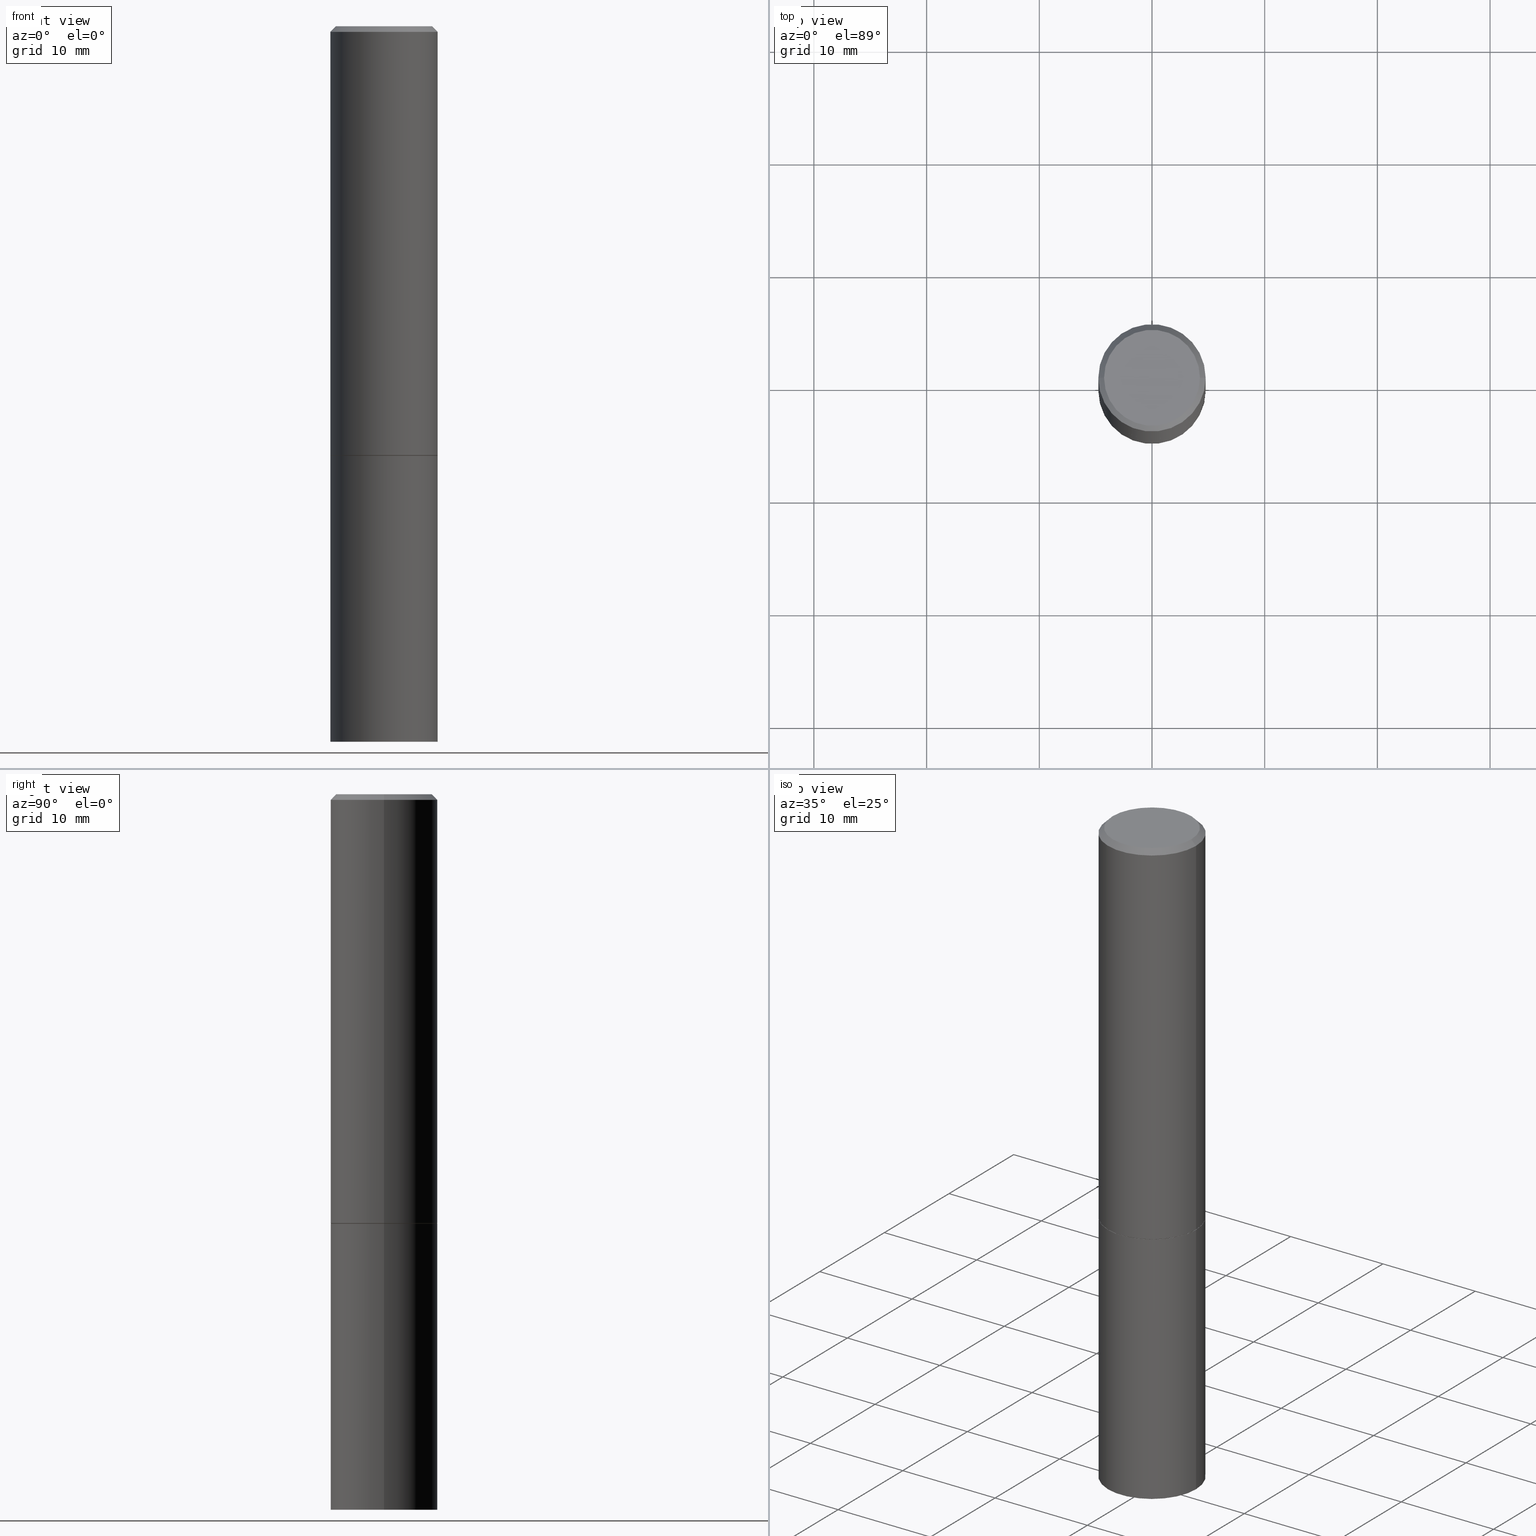
[diagram: canonical four-view strip — front | top / right | iso, engineering-drawing reading convention]
A machine part, canonical four-view strip (front | top / right | iso — engineering-drawing reading convention). The complete STEP part file that produces these views, byte-faithful:
ISO-10303-21;
HEADER;
FILE_DESCRIPTION (( 'STEP AP203' ),
    '1' );
FILE_NAME ('34664.STEP',
    '2024-02-27T16:38:16',
    ( '' ),
    ( '' ),
    'SwSTEP 2.0',
    'SolidWorks 2023',
    '' );
FILE_SCHEMA (( 'CONFIG_CONTROL_DESIGN' ));
ENDSEC;

DATA;
#1 = VERTEX_POINT ( 'NONE', #120 ) ;
#2 = VERTEX_POINT ( 'NONE', #236 ) ;
#3 = LINE ( 'NONE', #4, #242 ) ;
#4 = CARTESIAN_POINT ( 'NONE',  ( -0.1864999999999999714, -3.912059806072132914E-15, -1.500000000000000444 ) ) ;
#5 = AXIS2_PLACEMENT_3D ( 'NONE', #186, #328, #105 ) ;
#6 = PRODUCT_DEFINITION_FORMATION_WITH_SPECIFIED_SOURCE ( 'ANY', '', #138, .NOT_KNOWN. ) ;
#7 = PERSON ( 'UNSPECIFIED', 'UNSPECIFIED', 'UNSPECIFIED', ('UNSPECIFIED'), ('UNSPECIFIED'), ('UNSPECIFIED') ) ;
#8 = DIRECTION ( 'NONE',  ( 1.000000000000000000, -6.982962677686265922E-15, 4.876176775795935793E-29 ) ) ;
#9 = DIRECTION ( 'NONE',  ( 1.000000000000000000, -6.982962677686266711E-15, 4.876176775795936914E-29 ) ) ;
#10 = DIRECTION ( 'NONE',  ( 2.438088387897960049E-29, -3.491481338843145188E-15, -1.000000000000000000 ) ) ;
#11 = PRODUCT_DEFINITION_SHAPE ( 'NONE', 'NONE',  #103 ) ;
#12 = FACE_OUTER_BOUND ( 'NONE', #36, .T. ) ;
#13 = DIRECTION ( 'NONE',  ( 1.000000000000000000, -6.982962677686266711E-15, 0.000000000000000000 ) ) ;
#14 = ADVANCED_FACE ( 'NONE', ( #177 ), #282, .F. ) ;
#15 = ORIENTED_EDGE ( 'NONE', *, *, #347, .F. ) ;
#16 = CARTESIAN_POINT ( 'NONE',  ( 1.309305502066236145E-15, 0.1874999999999912847, -2.500000000000000444 ) ) ;
#17 = PERSON_AND_ORGANIZATION_ROLE ( 'classification_officer' ) ;
#18 = CONICAL_SURFACE ( 'NONE', #319, 0.1864999999999999714, 0.7853981633972946241 ) ;
#19 = ORGANIZATION ( 'UNSPECIFIED', 'UNSPECIFIED', '' ) ;
#20 = EDGE_CURVE ( 'NONE', #252, #1, #185, .T. ) ;
#21 =( CONVERSION_BASED_UNIT ( 'INCH', #196 ) LENGTH_UNIT ( ) NAMED_UNIT ( #344 ) );
#22 = PERSON_AND_ORGANIZATION ( #7, #19 ) ;
#23 = APPLICATION_PROTOCOL_DEFINITION ( 'international standard', 'config_control_design', 1994, #181 ) ;
#24 = AXIS2_PLACEMENT_3D ( 'NONE', #288, #348, #128 ) ;
#25 = EDGE_LOOP ( 'NONE', ( #109, #163, #15, #189 ) ) ;
#26 = FACE_OUTER_BOUND ( 'NONE', #209, .T. ) ;
#27 = CARTESIAN_POINT ( 'NONE',  ( 0.1875000000000000278, -6.546527510330893974E-15, -1.500000000000000222 ) ) ;
#28 = ADVANCED_FACE ( 'NONE', ( #321 ), #187, .F. ) ;
#29 = LINE ( 'NONE', #143, #30 ) ;
#30 = VECTOR ( 'NONE', #310, 39.37007874015748143 ) ;
#31 = APPROVAL ( #50, 'UNSPECIFIED' ) ;
#32 = DIRECTION ( 'NONE',  ( -2.445468806185136597E-29, 3.491481338843145583E-15, 1.000000000000000000 ) ) ;
#33 = CARTESIAN_POINT ( 'NONE',  ( 4.890937612370283668E-31, -6.982962677686305168E-17, -0.02000000000000004205 ) ) ;
#34 = ORIENTED_EDGE ( 'NONE', *, *, #20, .F. ) ;
#35 = ORIENTED_EDGE ( 'NONE', *, *, #94, .T. ) ;
#36 = EDGE_LOOP ( 'NONE', ( #329, #228, #352, #148 ) ) ;
#37 = EDGE_CURVE ( 'NONE', #284, #317, #40, .T. ) ;
#38 = AXIS2_PLACEMENT_3D ( 'NONE', #281, #32, #157 ) ;
#39 = DIRECTION ( 'NONE',  ( 1.000000000000000000, -6.982962677686269077E-15, 0.000000000000000000 ) ) ;
#40 = LINE ( 'NONE', #243, #255 ) ;
#41 = CC_DESIGN_PERSON_AND_ORGANIZATION_ASSIGNMENT ( #197, #193, ( #138 ) ) ;
#42 = ADVANCED_FACE ( 'NONE', ( #188 ), #97, .T. ) ;
#43 = AXIS2_PLACEMENT_3D ( 'NONE', #269, #46, #192 ) ;
#44 = CARTESIAN_POINT ( 'NONE',  ( 0.1875000000000000278, -1.309305502066175008E-15, 9.142831454617381013E-30 ) ) ;
#45 = AXIS2_PLACEMENT_3D ( 'NONE', #76, #161, #297 ) ;
#46 = DIRECTION ( 'NONE',  ( 2.445468806185136597E-29, -3.491481338843145583E-15, -1.000000000000000000 ) ) ;
#47 = SHAPE_DEFINITION_REPRESENTATION ( #11, #306 ) ;
#48 = CARTESIAN_POINT ( 'NONE',  ( 3.668203209277706016E-29, -5.237222008264719754E-15, -1.500000000000000444 ) ) ;
#49 = EDGE_CURVE ( 'NONE', #284, #160, #67, .T. ) ;
#50 = APPROVAL_STATUS ( 'not_yet_approved' ) ;
#51 = VECTOR ( 'NONE', #214, 39.37007874015748143 ) ;
#52 = PERSON_AND_ORGANIZATION ( #7, #19 ) ;
#53 = LINE ( 'NONE', #137, #292 ) ;
#54 = CALENDAR_DATE ( 2024, 27, 2 ) ;
#55 = DIRECTION ( 'NONE',  ( 1.000000000000000000, -6.982962677686266711E-15, 0.000000000000000000 ) ) ;
#56 = ORIENTED_EDGE ( 'NONE', *, *, #126, .T. ) ;
#57 = ADVANCED_FACE ( 'NONE', ( #287 ), #18, .T. ) ;
#58 = CARTESIAN_POINT ( 'NONE',  ( 0.1875000000000000278, -1.003800884917403995E-14, -2.500000000000000000 ) ) ;
#59 = CARTESIAN_POINT ( 'NONE',  ( 4.890937612370283668E-31, -6.982962677686305168E-17, -0.02000000000000004205 ) ) ;
#60 = ORIENTED_EDGE ( 'NONE', *, *, #87, .F. ) ;
#61 = UNCERTAINTY_MEASURE_WITH_UNIT (LENGTH_MEASURE( 1.000000000000000082E-05 ), #21, 'distance_accuracy_value', 'NONE');
#62 = DIRECTION ( 'NONE',  ( 1.000000000000000000, -6.982962677686265922E-15, 4.876176775795935793E-29 ) ) ;
#63 = ORIENTED_EDGE ( 'NONE', *, *, #231, .F. ) ;
#64 = LINE ( 'NONE', #213, #291 ) ;
#65 = CLOSED_SHELL ( 'NONE', ( #330, #184, #14, #217 ) ) ;
#66 = LINE ( 'NONE', #303, #51 ) ;
#67 = CIRCLE ( 'NONE', #5, 0.1875000000000000278 ) ;
#68 = APPROVAL_PERSON_ORGANIZATION ( #301, #106, #302 ) ;
#69 = PLANE ( 'NONE',  #156 ) ;
#70 = APPROVAL ( #353, 'UNSPECIFIED' ) ;
#71 = CARTESIAN_POINT ( 'NONE',  ( 3.668203209277706016E-29, -5.237222008264719754E-15, -1.500000000000000444 ) ) ;
#72 = EDGE_CURVE ( 'NONE', #354, #81, #104, .T. ) ;
#73 = DIRECTION ( 'NONE',  ( -2.445468806185136597E-29, 3.491481338843145583E-15, 1.000000000000000000 ) ) ;
#74 = AXIS2_PLACEMENT_3D ( 'NONE', #240, #289, #266 ) ;
#75 = DIRECTION ( 'NONE',  ( -1.000000000000000000, 6.982962677686266711E-15, 0.000000000000000000 ) ) ;
#76 = CARTESIAN_POINT ( 'NONE',  ( 6.113672015462842613E-29, -8.728703347107864943E-15, -2.500000000000000000 ) ) ;
#77 = DIRECTION ( 'NONE',  ( -2.445468806185136597E-29, 3.491481338843145583E-15, 1.000000000000000000 ) ) ;
#78 = DATE_TIME_ROLE ( 'creation_date' ) ;
#79 = DIRECTION ( 'NONE',  ( -2.445468806185136597E-29, 3.491481338843145583E-15, 1.000000000000000000 ) ) ;
#80 = EDGE_LOOP ( 'NONE', ( #63, #232 ) ) ;
#81 = VERTEX_POINT ( 'NONE', #294 ) ;
#82 = CC_DESIGN_PERSON_AND_ORGANIZATION_ASSIGNMENT ( #110, #140, ( #103 ) ) ;
#83 = DATE_AND_TIME ( #230, #238 ) ;
#84 = DIRECTION ( 'NONE',  ( -2.445468806185136597E-29, 3.491481338843145583E-15, 1.000000000000000000 ) ) ;
#85 = DIRECTION ( 'NONE',  ( -1.000000000000000000, 6.982962677686265922E-15, -4.876176775795935793E-29 ) ) ;
#86 = EDGE_LOOP ( 'NONE', ( #237, #102, #336, #60 ) ) ;
#87 = EDGE_CURVE ( 'NONE', #363, #354, #343, .T. ) ;
#88 =( LENGTH_UNIT ( ) NAMED_UNIT ( * ) SI_UNIT ( $, .METRE. ) );
#89 = CIRCLE ( 'NONE', #45, 0.1875000000000000278 ) ;
#90 = DIRECTION ( 'NONE',  ( 1.000000000000000000, -6.982962677686266711E-15, 0.000000000000000000 ) ) ;
#91 = ORIENTED_EDGE ( 'NONE', *, *, #199, .T. ) ;
#92 = CONICAL_SURFACE ( 'NONE', #43, 0.1874999999999998057, 0.7853981633974471688 ) ;
#93 = AXIS2_PLACEMENT_3D ( 'NONE', #146, #362, #62 ) ;
#94 = EDGE_CURVE ( 'NONE', #113, #134, #124, .T. ) ;
#95 = CYLINDRICAL_SURFACE ( 'NONE', #93, 0.1875000000000000278 ) ;
#96 = CARTESIAN_POINT ( 'NONE',  ( 0.000000000000000000, 0.000000000000000000, 0.000000000000000000 ) ) ;
#97 = CYLINDRICAL_SURFACE ( 'NONE', #24, 0.1874999999999999167 ) ;
#98 = AXIS2_PLACEMENT_3D ( 'NONE', #233, #337, #180 ) ;
#99 = CARTESIAN_POINT ( 'NONE',  ( 4.890937612370283668E-31, -6.982962677686305168E-17, -0.02000000000000004205 ) ) ;
#100 = DIRECTION ( 'NONE',  ( -2.445468806185136877E-29, 3.491481338843145188E-15, 1.000000000000000000 ) ) ;
#101 = LINE ( 'NONE', #267, #152 ) ;
#102 = ORIENTED_EDGE ( 'NONE', *, *, #223, .T. ) ;
#103 = PRODUCT_DEFINITION ( 'UNKNOWN', '', #6, #279 ) ;
#104 = CIRCLE ( 'NONE', #74, 0.1875000000000000278 ) ;
#105 = DIRECTION ( 'NONE',  ( 1.000000000000000000, -6.982962677686266711E-15, 0.000000000000000000 ) ) ;
#106 = APPROVAL ( #256, 'UNSPECIFIED' ) ;
#107 = CIRCLE ( 'NONE', #265, 0.1874999999999998057 ) ;
#108 = DATE_AND_TIME ( #225, #158 ) ;
#109 = ORIENTED_EDGE ( 'NONE', *, *, #231, .T. ) ;
#110 = PERSON_AND_ORGANIZATION ( #7, #19 ) ;
#111 = ORIENTED_EDGE ( 'NONE', *, *, #223, .F. ) ;
#112 = CYLINDRICAL_SURFACE ( 'NONE', #351, 0.1875000000000000278 ) ;
#113 = VERTEX_POINT ( 'NONE', #318 ) ;
#114 = ORIENTED_EDGE ( 'NONE', *, *, #20, .T. ) ;
#115 = DATE_TIME_ROLE ( 'classification_date' ) ;
#116 = CARTESIAN_POINT ( 'NONE',  ( 0.000000000000000000, 0.000000000000000000, 0.000000000000000000 ) ) ;
#117 = ORIENTED_EDGE ( 'NONE', *, *, #49, .F. ) ;
#118 = CC_DESIGN_PERSON_AND_ORGANIZATION_ASSIGNMENT ( #22, #17, ( #166 ) ) ;
#119 = DIRECTION ( 'NONE',  ( 0.000000000000000000, 0.000000000000000000, 1.000000000000000000 ) ) ;
#120 = CARTESIAN_POINT ( 'NONE',  ( 0.1674999999999998157, -1.252653207992877105E-15, 8.469775550109232378E-30 ) ) ;
#121 = ORIENTED_EDGE ( 'NONE', *, *, #260, .F. ) ;
#122 = CC_DESIGN_DATE_AND_TIME_ASSIGNMENT ( #251, #78, ( #103 ) ) ;
#123 = EDGE_CURVE ( 'NONE', #2, #363, #234, .T. ) ;
#124 = CIRCLE ( 'NONE', #139, 0.1864999999999999714 ) ;
#125 = MANIFOLD_SOLID_BREP ( 'Body-Move/Copy2[2]', #365 ) ;
#126 = EDGE_CURVE ( 'NONE', #160, #357, #101, .T. ) ;
#127 = DIRECTION ( 'NONE',  ( 2.445468806185136597E-29, -3.491481338843145583E-15, -1.000000000000000000 ) ) ;
#128 = DIRECTION ( 'NONE',  ( 1.000000000000000000, -6.982962677686265922E-15, 4.876176775795935793E-29 ) ) ;
#129 = CARTESIAN_POINT ( 'NONE',  ( 1.309305502066211690E-15, 0.1874999999999947820, -1.500000000000000666 ) ) ;
#130 = DIRECTION ( 'NONE',  ( 1.000000000000000000, -6.982962677686266711E-15, 4.876176775795936914E-29 ) ) ;
#131 = DIRECTION ( 'NONE',  ( -2.438088387897960049E-29, 3.491481338843145188E-15, 1.000000000000000000 ) ) ;
#132 = DIRECTION ( 'NONE',  ( -2.445468806185136597E-29, 3.491481338843145583E-15, 1.000000000000000000 ) ) ;
#133 = CIRCLE ( 'NONE', #153, 0.1875000000000000278 ) ;
#134 = VERTEX_POINT ( 'NONE', #298 ) ;
#135 =( NAMED_UNIT ( * ) PLANE_ANGLE_UNIT ( ) SI_UNIT ( $, .RADIAN. ) );
#136 = COORDINATED_UNIVERSAL_TIME_OFFSET ( 5, 0, .BEHIND. ) ;
#137 = CARTESIAN_POINT ( 'NONE',  ( -0.1874999999999998057, 1.239475875289310527E-15, -0.02000000000000004205 ) ) ;
#138 = PRODUCT ( '34664', '34664', '', ( #229 ) ) ;
#139 = AXIS2_PLACEMENT_3D ( 'NONE', #48, #159, #345 ) ;
#140 = PERSON_AND_ORGANIZATION_ROLE ( 'creator' ) ;
#141 = APPROVAL_PERSON_ORGANIZATION ( #332, #31, #204 ) ;
#142 = PRODUCT_RELATED_PRODUCT_CATEGORY ( 'detail', '', ( #138 ) ) ;
#143 = CARTESIAN_POINT ( 'NONE',  ( 0.1864999999999999714, -6.539544547653208748E-15, -1.500000000000000444 ) ) ;
#144 = ORIENTED_EDGE ( 'NONE', *, *, #260, .T. ) ;
#145 = DIRECTION ( 'NONE',  ( -2.445468806185136597E-29, 3.491481338843145583E-15, 1.000000000000000000 ) ) ;
#146 = CARTESIAN_POINT ( 'NONE',  ( 0.000000000000000000, 0.000000000000000000, 0.000000000000000000 ) ) ;
#147 = CARTESIAN_POINT ( 'NONE',  ( -0.1674999999999998157, 1.204561061900879272E-15, -8.301862719484101980E-30 ) ) ;
#148 = ORIENTED_EDGE ( 'NONE', *, *, #327, .F. ) ;
#149 = ADVANCED_FACE ( 'NONE', ( #241 ), #244, .T. ) ;
#150 = ORIENTED_EDGE ( 'NONE', *, *, #257, .T. ) ;
#151 = DIRECTION ( 'NONE',  ( -2.445468806185136597E-29, 3.491481338843145583E-15, 1.000000000000000000 ) ) ;
#152 = VECTOR ( 'NONE', #164, 39.37007874015748143 ) ;
#153 = AXIS2_PLACEMENT_3D ( 'NONE', #333, #145, #55 ) ;
#154 = CARTESIAN_POINT ( 'NONE',  ( 0.000000000000000000, 0.000000000000000000, 0.000000000000000000 ) ) ;
#155 = CARTESIAN_POINT ( 'NONE',  ( 3.668203209277706016E-29, -5.237222008264719754E-15, -1.500000000000000444 ) ) ;
#156 = AXIS2_PLACEMENT_3D ( 'NONE', #16, #226, #85 ) ;
#157 = DIRECTION ( 'NONE',  ( 1.000000000000000000, -6.982962677686269077E-15, 0.000000000000000000 ) ) ;
#158 = LOCAL_TIME ( 11, 38, 16.00000000000000000, #202 ) ;
#159 = DIRECTION ( 'NONE',  ( -2.445468806185136597E-29, 3.491481338843145583E-15, 1.000000000000000000 ) ) ;
#160 = VERTEX_POINT ( 'NONE', #342 ) ;
#161 = DIRECTION ( 'NONE',  ( -2.445468806185136597E-29, 3.491481338843145583E-15, 1.000000000000000000 ) ) ;
#162 = FACE_OUTER_BOUND ( 'NONE', #300, .T. ) ;
#163 = ORIENTED_EDGE ( 'NONE', *, *, #208, .T. ) ;
#164 = DIRECTION ( 'NONE',  ( -2.445468806185136877E-29, 3.491481338843145188E-15, 1.000000000000000000 ) ) ;
#165 = APPROVAL_DATE_TIME ( #246, #106 ) ;
#166 = SECURITY_CLASSIFICATION ( '', '', #273 ) ;
#167 = ADVANCED_FACE ( 'NONE', ( #12 ), #201, .T. ) ;
#168 = PERSON_AND_ORGANIZATION_ROLE ( 'design_supplier' ) ;
#169 = PERSON_AND_ORGANIZATION ( #7, #19 ) ;
#170 = DIRECTION ( 'NONE',  ( 1.000000000000000000, -6.982962677686266711E-15, 0.000000000000000000 ) ) ;
#171 = CARTESIAN_POINT ( 'NONE',  ( 0.000000000000000000, 0.000000000000000000, 0.000000000000000000 ) ) ;
#172 = CIRCLE ( 'NONE', #325, 0.1875000000000000278 ) ;
#173 = ORIENTED_EDGE ( 'NONE', *, *, #87, .T. ) ;
#174 = DIRECTION ( 'NONE',  ( 1.000000000000000000, -6.982962677686269077E-15, 0.000000000000000000 ) ) ;
#175 = ORIENTED_EDGE ( 'NONE', *, *, #208, .F. ) ;
#176 = DIRECTION ( 'NONE',  ( -2.445468806185136877E-29, 3.491481338843145188E-15, 1.000000000000000000 ) ) ;
#177 = FACE_OUTER_BOUND ( 'NONE', #247, .T. ) ;
#178 = CONICAL_SURFACE ( 'NONE', #350, 0.1864999999999999714, 0.7853981633972946241 ) ;
#179 = ADVANCED_FACE ( 'NONE', ( #323 ), #92, .T. ) ;
#180 = DIRECTION ( 'NONE',  ( -1.000000000000000000, 6.982962677686265922E-15, -4.876176775795935793E-29 ) ) ;
#181 = APPLICATION_CONTEXT ( 'configuration controlled 3d designs of mechanical parts and assemblies' ) ;
#182 = FACE_OUTER_BOUND ( 'NONE', #276, .T. ) ;
#183 = ORIENTED_EDGE ( 'NONE', *, *, #327, .T. ) ;
#184 = ADVANCED_FACE ( 'NONE', ( #162 ), #69, .T. ) ;
#185 = CIRCLE ( 'NONE', #359, 0.1674999999999998157 ) ;
#186 = CARTESIAN_POINT ( 'NONE',  ( 3.665757740471519853E-29, -5.233730526925875958E-15, -1.499000000000000110 ) ) ;
#187 = PLANE ( 'NONE',  #277 ) ;
#188 = FACE_OUTER_BOUND ( 'NONE', #258, .T. ) ;
#189 = ORIENTED_EDGE ( 'NONE', *, *, #199, .F. ) ;
#190 = AXIS2_PLACEMENT_3D ( 'NONE', #96, #132, #9 ) ;
#191 = ADVANCED_FACE ( 'NONE', ( #26 ), #207, .F. ) ;
#192 = DIRECTION ( 'NONE',  ( -1.000000000000000000, 6.982962677686266711E-15, 0.000000000000000000 ) ) ;
#193 = PERSON_AND_ORGANIZATION_ROLE ( 'design_owner' ) ;
#194 = CARTESIAN_POINT ( 'NONE',  ( 6.113672015462842613E-29, -8.728703347107864943E-15, -2.500000000000000000 ) ) ;
#195 = ADVANCED_FACE ( 'NONE', ( #182 ), #178, .T. ) ;
#196 = LENGTH_MEASURE_WITH_UNIT ( LENGTH_MEASURE( 0.02539999999999999897 ), #88 );
#197 = PERSON_AND_ORGANIZATION ( #7, #19 ) ;
#198 = APPLICATION_CONTEXT ( 'configuration controlled 3d designs of mechanical parts and assemblies' ) ;
#199 = EDGE_CURVE ( 'NONE', #134, #160, #29, .T. ) ;
#200 = ORIENTED_EDGE ( 'NONE', *, *, #347, .T. ) ;
#201 = CONICAL_SURFACE ( 'NONE', #248, 0.1874999999999998057, 0.7853981633974471688 ) ;
#202 = COORDINATED_UNIVERSAL_TIME_OFFSET ( 5, 0, .BEHIND. ) ;
#203 = DIRECTION ( 'NONE',  ( 1.000000000000000000, -6.982962677686265922E-15, 4.876176775795935793E-29 ) ) ;
#204 = APPROVAL_ROLE ( '' ) ;
#205 = DIRECTION ( 'NONE',  ( -0.7071067811865466846, 2.468850131082247989E-15, -0.7071067811865483499 ) ) ;
#206 = DIRECTION ( 'NONE',  ( 1.000000000000000000, -6.982962677686266711E-15, 0.000000000000000000 ) ) ;
#207 = PLANE ( 'NONE',  #98 ) ;
#208 = EDGE_CURVE ( 'NONE', #113, #284, #3, .T. ) ;
#209 = EDGE_LOOP ( 'NONE', ( #114, #150 ) ) ;
#210 =( GEOMETRIC_REPRESENTATION_CONTEXT ( 3 ) GLOBAL_UNCERTAINTY_ASSIGNED_CONTEXT ( ( #61 ) ) GLOBAL_UNIT_ASSIGNED_CONTEXT ( ( #21, #135, #290 ) ) REPRESENTATION_CONTEXT ( 'NONE', 'WORKASPACE' ) );
#211 = DIRECTION ( 'NONE',  ( -2.445468806185136597E-29, 3.491481338843145583E-15, 1.000000000000000000 ) ) ;
#212 = CC_DESIGN_PERSON_AND_ORGANIZATION_ASSIGNMENT ( #52, #270, ( #6 ) ) ;
#213 = CARTESIAN_POINT ( 'NONE',  ( -0.1875000000000000278, 1.332267629550188046E-15, -9.223003294227947991E-30 ) ) ;
#214 = DIRECTION ( 'NONE',  ( 0.7071067811865466846, -7.319954787623252890E-15, -0.7071067811865483499 ) ) ;
#215 = CC_DESIGN_APPROVAL ( #31, ( #103 ) ) ;
#216 = ORIENTED_EDGE ( 'NONE', *, *, #339, .T. ) ;
#217 = ADVANCED_FACE ( 'NONE', ( #341 ), #95, .T. ) ;
#218 = ORIENTED_EDGE ( 'NONE', *, *, #37, .T. ) ;
#219 = DIRECTION ( 'NONE',  ( -2.445468806185136597E-29, 3.491481338843145583E-15, 1.000000000000000000 ) ) ;
#220 = APPROVAL_PERSON_ORGANIZATION ( #169, #70, #227 ) ;
#221 = DIRECTION ( 'NONE',  ( -1.000000000000000000, 6.982962677686265922E-15, -4.876176775795935793E-29 ) ) ;
#222 = ORIENTED_EDGE ( 'NONE', *, *, #123, .F. ) ;
#223 = EDGE_CURVE ( 'NONE', #2, #81, #64, .T. ) ;
#224 = CARTESIAN_POINT ( 'NONE',  ( 0.000000000000000000, 0.000000000000000000, 0.000000000000000000 ) ) ;
#225 = CALENDAR_DATE ( 2024, 27, 2 ) ;
#226 = DIRECTION ( 'NONE',  ( 2.438088387897960049E-29, -3.491481338843145188E-15, -1.000000000000000000 ) ) ;
#227 = APPROVAL_ROLE ( '' ) ;
#228 = ORIENTED_EDGE ( 'NONE', *, *, #275, .T. ) ;
#229 = MECHANICAL_CONTEXT ( 'NONE', #198, 'mechanical' ) ;
#230 = CALENDAR_DATE ( 2024, 27, 2 ) ;
#231 = EDGE_CURVE ( 'NONE', #134, #113, #278, .T. ) ;
#232 = ORIENTED_EDGE ( 'NONE', *, *, #94, .F. ) ;
#233 = CARTESIAN_POINT ( 'NONE',  ( 1.169646248512448412E-15, 0.1674999999999998157, -5.848231242562262767E-16 ) ) ;
#234 = CIRCLE ( 'NONE', #307, 0.1875000000000000278 ) ;
#235 = LOCAL_TIME ( 11, 38, 16.00000000000000000, #358 ) ;
#236 = CARTESIAN_POINT ( 'NONE',  ( -0.1875000000000000278, -5.650695048136103317E-15, -2.500000000000000000 ) ) ;
#237 = ORIENTED_EDGE ( 'NONE', *, *, #250, .T. ) ;
#238 = LOCAL_TIME ( 11, 38, 16.00000000000000000, #324 ) ;
#239 = DIRECTION ( 'NONE',  ( -0.7071067811864388819, 7.493145998869961307E-15, 0.7071067811866561525 ) ) ;
#240 = CARTESIAN_POINT ( 'NONE',  ( 3.668203209277704895E-29, -5.237222008264718177E-15, -1.500000000000000222 ) ) ;
#241 = FACE_OUTER_BOUND ( 'NONE', #296, .T. ) ;
#242 = VECTOR ( 'NONE', #239, 39.37007874015748143 ) ;
#243 = CARTESIAN_POINT ( 'NONE',  ( -0.1874999999999999167, 1.332267629550187257E-15, -9.223003294227943787E-30 ) ) ;
#244 = CYLINDRICAL_SURFACE ( 'NONE', #312, 0.1874999999999999167 ) ;
#245 = DIRECTION ( 'NONE',  ( -2.445468806185136877E-29, 3.491481338843145188E-15, 1.000000000000000000 ) ) ;
#246 = DATE_AND_TIME ( #355, #271 ) ;
#247 = EDGE_LOOP ( 'NONE', ( #315, #216 ) ) ;
#248 = AXIS2_PLACEMENT_3D ( 'NONE', #99, #127, #75 ) ;
#249 = CIRCLE ( 'NONE', #190, 0.1674999999999998157 ) ;
#250 = EDGE_CURVE ( 'NONE', #363, #2, #89, .T. ) ;
#251 = DATE_AND_TIME ( #253, #235 ) ;
#252 = VERTEX_POINT ( 'NONE', #147 ) ;
#253 = CALENDAR_DATE ( 2024, 27, 2 ) ;
#254 = ORIENTED_EDGE ( 'NONE', *, *, #126, .F. ) ;
#255 = VECTOR ( 'NONE', #245, 39.37007874015748143 ) ;
#256 = APPROVAL_STATUS ( 'not_yet_approved' ) ;
#257 = EDGE_CURVE ( 'NONE', #1, #252, #249, .T. ) ;
#258 = EDGE_LOOP ( 'NONE', ( #200, #218, #263, #254 ) ) ;
#259 = ORIENTED_EDGE ( 'NONE', *, *, #49, .T. ) ;
#260 = EDGE_CURVE ( 'NONE', #317, #357, #107, .T. ) ;
#261 = CC_DESIGN_APPROVAL ( #70, ( #166 ) ) ;
#262 = EDGE_LOOP ( 'NONE', ( #293, #34, #183, #144 ) ) ;
#263 = ORIENTED_EDGE ( 'NONE', *, *, #309, .F. ) ;
#264 = CARTESIAN_POINT ( 'NONE',  ( -0.1874999999999999722, -1.319512447301180399E-15, -1.499000000000000110 ) ) ;
#265 = AXIS2_PLACEMENT_3D ( 'NONE', #59, #151, #90 ) ;
#266 = DIRECTION ( 'NONE',  ( 1.000000000000000000, -6.982962677686266711E-15, 0.000000000000000000 ) ) ;
#267 = CARTESIAN_POINT ( 'NONE',  ( 0.1874999999999999167, -1.309305502066174219E-15, 9.142831454617375408E-30 ) ) ;
#268 = DIRECTION ( 'NONE',  ( -2.445468806185136597E-29, 3.491481338843145583E-15, 1.000000000000000000 ) ) ;
#269 = CARTESIAN_POINT ( 'NONE',  ( 4.890937612370283668E-31, -6.982962677686305168E-17, -0.02000000000000004205 ) ) ;
#270 = PERSON_AND_ORGANIZATION_ROLE ( 'creator' ) ;
#271 = LOCAL_TIME ( 11, 38, 16.00000000000000000, #299 ) ;
#272 = PERSON_AND_ORGANIZATION ( #7, #19 ) ;
#273 = SECURITY_CLASSIFICATION_LEVEL ( 'unclassified' ) ;
#274 = DIRECTION ( 'NONE',  ( -2.445468806185136597E-29, 3.491481338843145583E-15, 1.000000000000000000 ) ) ;
#275 = EDGE_CURVE ( 'NONE', #1, #357, #66, .T. ) ;
#276 = EDGE_LOOP ( 'NONE', ( #175, #35, #91, #117 ) ) ;
#277 = AXIS2_PLACEMENT_3D ( 'NONE', #71, #131, #322 ) ;
#278 = CIRCLE ( 'NONE', #38, 0.1864999999999999714 ) ;
#279 = DESIGN_CONTEXT ( 'detailed design', #181, 'design' ) ;
#280 = ORIENTED_EDGE ( 'NONE', *, *, #37, .F. ) ;
#281 = CARTESIAN_POINT ( 'NONE',  ( 3.668203209277706016E-29, -5.237222008264719754E-15, -1.500000000000000444 ) ) ;
#282 = PLANE ( 'NONE',  #285 ) ;
#283 = CC_DESIGN_DATE_AND_TIME_ASSIGNMENT ( #295, #115, ( #166 ) ) ;
#284 = VERTEX_POINT ( 'NONE', #264 ) ;
#285 = AXIS2_PLACEMENT_3D ( 'NONE', #129, #10, #221 ) ;
#286 = CIRCLE ( 'NONE', #308, 0.1874999999999998057 ) ;
#287 = FACE_OUTER_BOUND ( 'NONE', #25, .T. ) ;
#288 = CARTESIAN_POINT ( 'NONE',  ( 0.000000000000000000, 0.000000000000000000, 0.000000000000000000 ) ) ;
#289 = DIRECTION ( 'NONE',  ( -2.445468806185136597E-29, 3.491481338843145583E-15, 1.000000000000000000 ) ) ;
#290 =( NAMED_UNIT ( * ) SI_UNIT ( $, .STERADIAN. ) SOLID_ANGLE_UNIT ( ) );
#291 = VECTOR ( 'NONE', #176, 39.37007874015748143 ) ;
#292 = VECTOR ( 'NONE', #205, 39.37007874015748143 ) ;
#293 = ORIENTED_EDGE ( 'NONE', *, *, #275, .F. ) ;
#294 = CARTESIAN_POINT ( 'NONE',  ( -0.1875000000000000278, -5.650695048136103317E-15, -1.500000000000000222 ) ) ;
#295 = DATE_AND_TIME ( #54, #366 ) ;
#296 = EDGE_LOOP ( 'NONE', ( #280, #259, #56, #121 ) ) ;
#297 = DIRECTION ( 'NONE',  ( 1.000000000000000000, -6.982962677686266711E-15, 0.000000000000000000 ) ) ;
#298 = CARTESIAN_POINT ( 'NONE',  ( 0.1864999999999999714, -6.539544547653208748E-15, -1.500000000000000444 ) ) ;
#299 = COORDINATED_UNIVERSAL_TIME_OFFSET ( 5, 0, .BEHIND. ) ;
#300 = EDGE_LOOP ( 'NONE', ( #346, #222 ) ) ;
#301 = PERSON_AND_ORGANIZATION ( #7, #19 ) ;
#302 = APPROVAL_ROLE ( '' ) ;
#303 = CARTESIAN_POINT ( 'NONE',  ( 0.1874999999999998057, -1.356173001359023888E-15, -0.02000000000000004205 ) ) ;
#304 = FACE_OUTER_BOUND ( 'NONE', #86, .T. ) ;
#305 = CARTESIAN_POINT ( 'NONE',  ( 0.1874999999999998057, -1.356173001359023888E-15, -0.02000000000000004205 ) ) ;
#306 = ADVANCED_BREP_SHAPE_REPRESENTATION ( '34664', ( #364, #125, #340 ), #210 ) ;
#307 = AXIS2_PLACEMENT_3D ( 'NONE', #194, #268, #13 ) ;
#308 = AXIS2_PLACEMENT_3D ( 'NONE', #33, #84, #206 ) ;
#309 = EDGE_CURVE ( 'NONE', #357, #317, #286, .T. ) ;
#310 = DIRECTION ( 'NONE',  ( 0.7071067811864388819, -2.468850131081119129E-15, 0.7071067811866561525 ) ) ;
#311 = DIRECTION ( 'NONE',  ( 1.000000000000000000, 0.000000000000000000, 0.000000000000000000 ) ) ;
#312 = AXIS2_PLACEMENT_3D ( 'NONE', #224, #77, #8 ) ;
#313 = CC_DESIGN_PERSON_AND_ORGANIZATION_ASSIGNMENT ( #272, #168, ( #6 ) ) ;
#314 = VECTOR ( 'NONE', #100, 39.37007874015748143 ) ;
#315 = ORIENTED_EDGE ( 'NONE', *, *, #72, .T. ) ;
#316 = CARTESIAN_POINT ( 'NONE',  ( 3.668203209277706016E-29, -5.237222008264719754E-15, -1.500000000000000444 ) ) ;
#317 = VERTEX_POINT ( 'NONE', #356 ) ;
#318 = CARTESIAN_POINT ( 'NONE',  ( -0.1864999999999999714, -3.906761351723910512E-15, -1.500000000000000444 ) ) ;
#319 = AXIS2_PLACEMENT_3D ( 'NONE', #155, #219, #39 ) ;
#320 = CC_DESIGN_APPROVAL ( #106, ( #6 ) ) ;
#321 = FACE_OUTER_BOUND ( 'NONE', #80, .T. ) ;
#322 = DIRECTION ( 'NONE',  ( 1.000000000000000000, -6.982962677686265922E-15, 4.876176775795935793E-29 ) ) ;
#323 = FACE_OUTER_BOUND ( 'NONE', #262, .T. ) ;
#324 = COORDINATED_UNIVERSAL_TIME_OFFSET ( 5, 0, .BEHIND. ) ;
#325 = AXIS2_PLACEMENT_3D ( 'NONE', #334, #274, #170 ) ;
#326 = EDGE_LOOP ( 'NONE', ( #111, #331, #173, #338 ) ) ;
#327 = EDGE_CURVE ( 'NONE', #252, #317, #53, .T. ) ;
#328 = DIRECTION ( 'NONE',  ( -2.445468806185136597E-29, 3.491481338843145583E-15, 1.000000000000000000 ) ) ;
#329 = ORIENTED_EDGE ( 'NONE', *, *, #257, .F. ) ;
#330 = ADVANCED_FACE ( 'NONE', ( #304 ), #112, .T. ) ;
#331 = ORIENTED_EDGE ( 'NONE', *, *, #123, .T. ) ;
#332 = PERSON_AND_ORGANIZATION ( #7, #19 ) ;
#333 = CARTESIAN_POINT ( 'NONE',  ( 3.668203209277704895E-29, -5.237222008264718177E-15, -1.500000000000000222 ) ) ;
#334 = CARTESIAN_POINT ( 'NONE',  ( 3.665757740471519853E-29, -5.233730526925875958E-15, -1.499000000000000110 ) ) ;
#335 = APPLICATION_PROTOCOL_DEFINITION ( 'international standard', 'config_control_design', 1994, #198 ) ;
#336 = ORIENTED_EDGE ( 'NONE', *, *, #72, .F. ) ;
#337 = DIRECTION ( 'NONE',  ( 2.438088387897960049E-29, -3.491481338843145188E-15, -1.000000000000000000 ) ) ;
#338 = ORIENTED_EDGE ( 'NONE', *, *, #339, .F. ) ;
#339 = EDGE_CURVE ( 'NONE', #81, #354, #133, .T. ) ;
#340 = AXIS2_PLACEMENT_3D ( 'NONE', #171, #119, #311 ) ;
#341 = FACE_OUTER_BOUND ( 'NONE', #326, .T. ) ;
#342 = CARTESIAN_POINT ( 'NONE',  ( 0.1875000000000000278, -6.543036028992050967E-15, -1.499000000000000110 ) ) ;
#343 = LINE ( 'NONE', #44, #314 ) ;
#344 = DIMENSIONAL_EXPONENTS ( 1.000000000000000000, 0.000000000000000000, 0.000000000000000000, 0.000000000000000000, 0.000000000000000000, 0.000000000000000000, 0.000000000000000000 ) ;
#345 = DIRECTION ( 'NONE',  ( 1.000000000000000000, -6.982962677686269077E-15, 0.000000000000000000 ) ) ;
#346 = ORIENTED_EDGE ( 'NONE', *, *, #250, .F. ) ;
#347 = EDGE_CURVE ( 'NONE', #160, #284, #172, .T. ) ;
#348 = DIRECTION ( 'NONE',  ( -2.445468806185136597E-29, 3.491481338843145583E-15, 1.000000000000000000 ) ) ;
#349 = APPROVAL_DATE_TIME ( #108, #31 ) ;
#350 = AXIS2_PLACEMENT_3D ( 'NONE', #316, #211, #174 ) ;
#351 = AXIS2_PLACEMENT_3D ( 'NONE', #116, #79, #203 ) ;
#352 = ORIENTED_EDGE ( 'NONE', *, *, #309, .T. ) ;
#353 = APPROVAL_STATUS ( 'not_yet_approved' ) ;
#354 = VERTEX_POINT ( 'NONE', #27 ) ;
#355 = CALENDAR_DATE ( 2024, 27, 2 ) ;
#356 = CARTESIAN_POINT ( 'NONE',  ( -0.1874999999999998057, 1.239475875289310527E-15, -0.02000000000000004205 ) ) ;
#357 = VERTEX_POINT ( 'NONE', #305 ) ;
#358 = COORDINATED_UNIVERSAL_TIME_OFFSET ( 5, 0, .BEHIND. ) ;
#359 = AXIS2_PLACEMENT_3D ( 'NONE', #154, #73, #130 ) ;
#360 = CC_DESIGN_SECURITY_CLASSIFICATION ( #166, ( #6 ) ) ;
#361 = APPROVAL_DATE_TIME ( #83, #70 ) ;
#362 = DIRECTION ( 'NONE',  ( -2.445468806185136597E-29, 3.491481338843145583E-15, 1.000000000000000000 ) ) ;
#363 = VERTEX_POINT ( 'NONE', #58 ) ;
#364 = MANIFOLD_SOLID_BREP ( 'Body-Move/Copy2[1]', #65 ) ;
#365 = CLOSED_SHELL ( 'NONE', ( #57, #42, #167, #179, #149, #195, #28, #191 ) ) ;
#366 = LOCAL_TIME ( 11, 38, 16.00000000000000000, #136 ) ;
ENDSEC;
END-ISO-10303-21;
